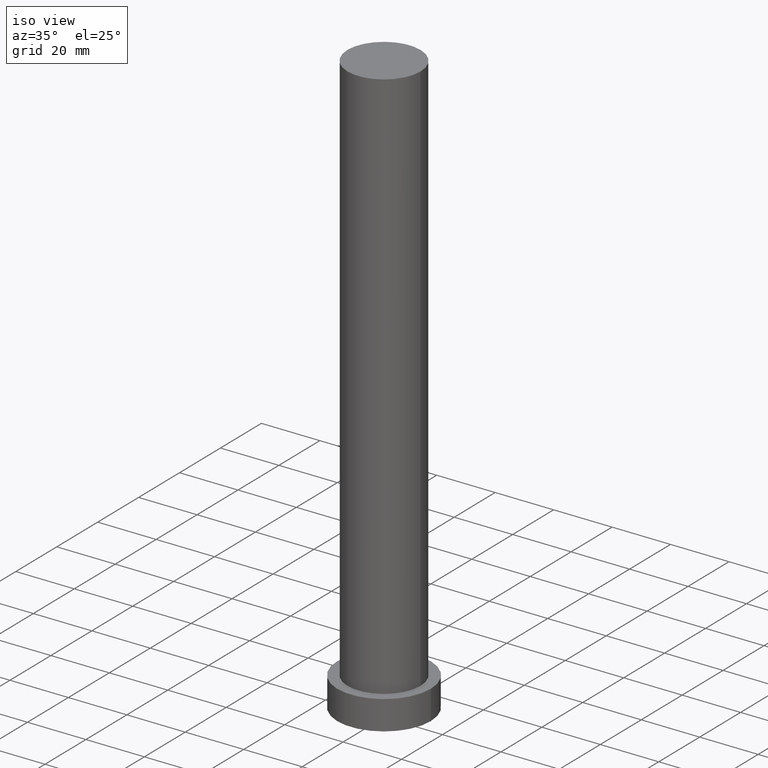
[diagram: clean part render]
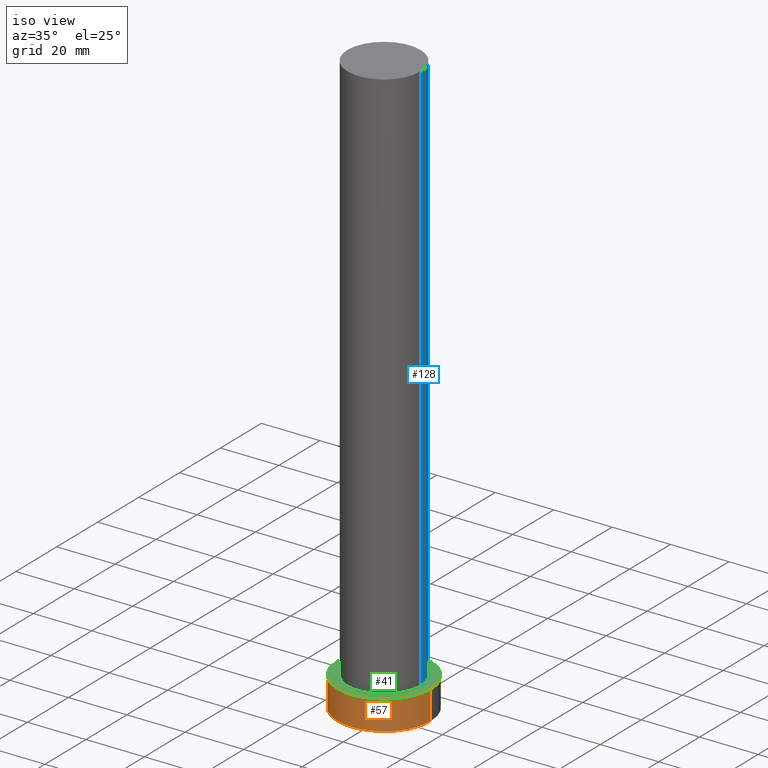
[diagram: same view with three faces highlighted in distinct colors, each labeled with its STEP entity id]
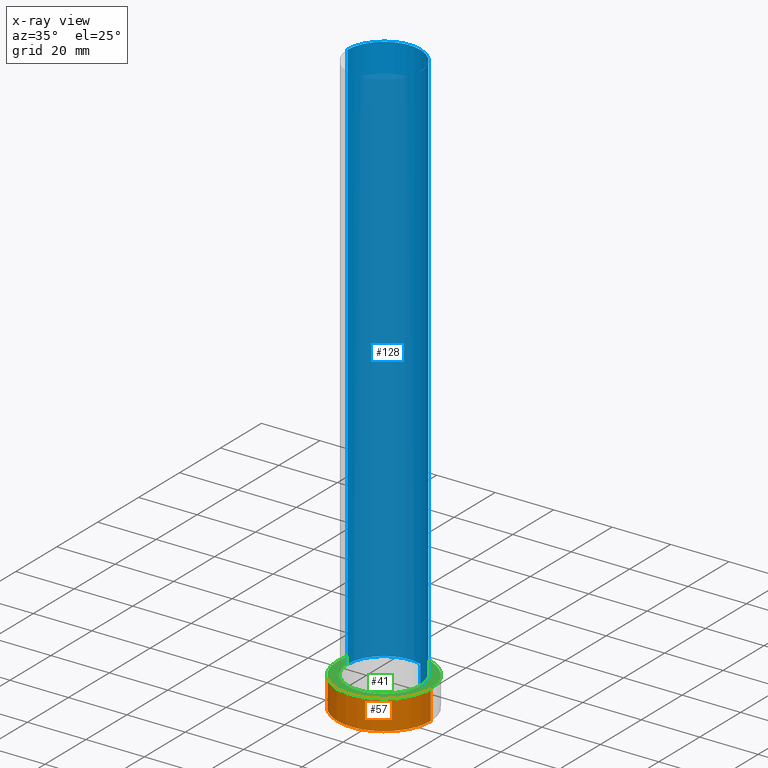
[diagram: x-ray of the same camera — body ghosted, the three highlighted faces saturated]
A machine part, iso view with three faces highlighted in distinct colors.
The next image is the same camera in x-ray (body ghosted, the three faces saturated) — at least one of them is partly hidden behind the body in this view.
Their STEP definitions:

[orange] entity #57 — the highlighted cylindrical surface (partial cylindrical patch) has radius 16 mm, axis along (-0, -0, -1).
#9 = CYLINDRICAL_SURFACE ( 'NONE', #255, 16.00000000000000000 ) ;
#19 = CARTESIAN_POINT ( 'NONE',  ( 16.00000000000000000, 1.959434878635765131E-15, 0.000000000000000000 ) ) ;
#40 = EDGE_LOOP ( 'NONE', ( #205, #153, #92, #129 ) ) ;
#48 = DIRECTION ( 'NONE',  ( -1.000000000000000000, 0.000000000000000000, 0.000000000000000000 ) ) ;
#57 = ADVANCED_FACE ( 'NONE', ( #138 ), #9, .T. ) ;
#58 = CARTESIAN_POINT ( 'NONE',  ( 16.00000000000000000, 1.959434878635765131E-15, 10.00000000000000000 ) ) ;
#65 = CARTESIAN_POINT ( 'NONE',  ( -16.00000000000000000, 0.000000000000000000, 10.00000000000000000 ) ) ;
#68 = AXIS2_PLACEMENT_3D ( 'NONE', #155, #71, #90 ) ;
#71 = DIRECTION ( 'NONE',  ( 0.000000000000000000, 0.000000000000000000, 1.000000000000000000 ) ) ;
#84 = CIRCLE ( 'NONE', #141, 16.00000000000000000 ) ;
#87 = DIRECTION ( 'NONE',  ( -0.000000000000000000, -0.000000000000000000, -1.000000000000000000 ) ) ;
#90 = DIRECTION ( 'NONE',  ( 1.000000000000000000, 0.000000000000000000, 0.000000000000000000 ) ) ;
#92 = ORIENTED_EDGE ( 'NONE', *, *, #236, .T. ) ;
#95 = CARTESIAN_POINT ( 'NONE',  ( 16.00000000000000000, 1.959434878635765131E-15, 10.00000000000000000 ) ) ;
#99 = EDGE_CURVE ( 'NONE', #114, #167, #110, .T. ) ;
#110 = LINE ( 'NONE', #58, #249 ) ;
#111 = CARTESIAN_POINT ( 'NONE',  ( -16.00000000000000000, 0.000000000000000000, 10.00000000000000000 ) ) ;
#114 = VERTEX_POINT ( 'NONE', #95 ) ;
#121 = CIRCLE ( 'NONE', #68, 16.00000000000000000 ) ;
#129 = ORIENTED_EDGE ( 'NONE', *, *, #170, .T. ) ;
#133 = VERTEX_POINT ( 'NONE', #242 ) ;
#135 = CARTESIAN_POINT ( 'NONE',  ( 0.000000000000000000, 0.000000000000000000, 0.000000000000000000 ) ) ;
#137 = DIRECTION ( 'NONE',  ( -0.000000000000000000, -0.000000000000000000, -1.000000000000000000 ) ) ;
#138 = FACE_OUTER_BOUND ( 'NONE', #40, .T. ) ;
#141 = AXIS2_PLACEMENT_3D ( 'NONE', #135, #200, #221 ) ;
#148 = VERTEX_POINT ( 'NONE', #111 ) ;
#150 = DIRECTION ( 'NONE',  ( -0.000000000000000000, -0.000000000000000000, -1.000000000000000000 ) ) ;
#153 = ORIENTED_EDGE ( 'NONE', *, *, #154, .F. ) ;
#154 = EDGE_CURVE ( 'NONE', #148, #114, #121, .T. ) ;
#155 = CARTESIAN_POINT ( 'NONE',  ( 0.000000000000000000, 0.000000000000000000, 10.00000000000000000 ) ) ;
#167 = VERTEX_POINT ( 'NONE', #19 ) ;
#170 = EDGE_CURVE ( 'NONE', #133, #167, #84, .T. ) ;
#200 = DIRECTION ( 'NONE',  ( 0.000000000000000000, 0.000000000000000000, 1.000000000000000000 ) ) ;
#205 = ORIENTED_EDGE ( 'NONE', *, *, #99, .F. ) ;
#215 = VECTOR ( 'NONE', #137, 1000.000000000000000 ) ;
#221 = DIRECTION ( 'NONE',  ( 1.000000000000000000, 0.000000000000000000, 0.000000000000000000 ) ) ;
#223 = LINE ( 'NONE', #65, #215 ) ;
#225 = CARTESIAN_POINT ( 'NONE',  ( 0.000000000000000000, 0.000000000000000000, 10.00000000000000000 ) ) ;
#236 = EDGE_CURVE ( 'NONE', #148, #133, #223, .T. ) ;
#242 = CARTESIAN_POINT ( 'NONE',  ( -16.00000000000000000, 0.000000000000000000, 0.000000000000000000 ) ) ;
#249 = VECTOR ( 'NONE', #87, 1000.000000000000000 ) ;
#255 = AXIS2_PLACEMENT_3D ( 'NONE', #225, #150, #48 ) ;

[blue] entity #128 — the highlighted cylindrical surface (partial cylindrical patch) has radius 12.5 mm, axis along (-0, -0, -1).
#2 = DIRECTION ( 'NONE',  ( -1.000000000000000000, 0.000000000000000000, 0.000000000000000000 ) ) ;
#4 = DIRECTION ( 'NONE',  ( -0.000000000000000000, -0.000000000000000000, -1.000000000000000000 ) ) ;
#8 = CARTESIAN_POINT ( 'NONE',  ( 0.000000000000000000, 0.000000000000000000, 10.00000000000000000 ) ) ;
#11 = CARTESIAN_POINT ( 'NONE',  ( 12.50000000000000000, 1.530808498934191521E-15, 200.0000000000000000 ) ) ;
#12 = CIRCLE ( 'NONE', #185, 12.50000000000000000 ) ;
#17 = EDGE_CURVE ( 'NONE', #64, #164, #74, .T. ) ;
#20 = ORIENTED_EDGE ( 'NONE', *, *, #17, .F. ) ;
#30 = EDGE_CURVE ( 'NONE', #123, #64, #12, .T. ) ;
#38 = CIRCLE ( 'NONE', #51, 12.50000000000000000 ) ;
#45 = DIRECTION ( 'NONE',  ( -0.000000000000000000, -0.000000000000000000, -1.000000000000000000 ) ) ;
#50 = CARTESIAN_POINT ( 'NONE',  ( 0.000000000000000000, 0.000000000000000000, 200.0000000000000000 ) ) ;
#51 = AXIS2_PLACEMENT_3D ( 'NONE', #8, #101, #182 ) ;
#64 = VERTEX_POINT ( 'NONE', #238 ) ;
#70 = AXIS2_PLACEMENT_3D ( 'NONE', #172, #4, #2 ) ;
#72 = FACE_OUTER_BOUND ( 'NONE', #171, .T. ) ;
#74 = LINE ( 'NONE', #156, #81 ) ;
#80 = CYLINDRICAL_SURFACE ( 'NONE', #70, 12.50000000000000000 ) ;
#81 = VECTOR ( 'NONE', #45, 1000.000000000000000 ) ;
#101 = DIRECTION ( 'NONE',  ( 0.000000000000000000, 0.000000000000000000, 1.000000000000000000 ) ) ;
#109 = EDGE_CURVE ( 'NONE', #123, #145, #245, .T. ) ;
#116 = CARTESIAN_POINT ( 'NONE',  ( -12.50000000000000000, 0.000000000000000000, 10.00000000000000000 ) ) ;
#117 = EDGE_CURVE ( 'NONE', #145, #164, #38, .T. ) ;
#118 = DIRECTION ( 'NONE',  ( 1.000000000000000000, 0.000000000000000000, 0.000000000000000000 ) ) ;
#123 = VERTEX_POINT ( 'NONE', #11 ) ;
#128 = ADVANCED_FACE ( 'NONE', ( #72 ), #80, .T. ) ;
#145 = VERTEX_POINT ( 'NONE', #209 ) ;
#156 = CARTESIAN_POINT ( 'NONE',  ( -12.50000000000000000, 0.000000000000000000, 200.0000000000000000 ) ) ;
#164 = VERTEX_POINT ( 'NONE', #116 ) ;
#166 = VECTOR ( 'NONE', #229, 1000.000000000000000 ) ;
#171 = EDGE_LOOP ( 'NONE', ( #197, #241, #220, #20 ) ) ;
#172 = CARTESIAN_POINT ( 'NONE',  ( 0.000000000000000000, 0.000000000000000000, 200.0000000000000000 ) ) ;
#182 = DIRECTION ( 'NONE',  ( 1.000000000000000000, 0.000000000000000000, 0.000000000000000000 ) ) ;
#185 = AXIS2_PLACEMENT_3D ( 'NONE', #50, #206, #118 ) ;
#197 = ORIENTED_EDGE ( 'NONE', *, *, #30, .F. ) ;
#198 = CARTESIAN_POINT ( 'NONE',  ( 12.50000000000000000, 1.530808498934191521E-15, 200.0000000000000000 ) ) ;
#206 = DIRECTION ( 'NONE',  ( 0.000000000000000000, 0.000000000000000000, 1.000000000000000000 ) ) ;
#209 = CARTESIAN_POINT ( 'NONE',  ( 12.50000000000000000, 1.530808498934191521E-15, 10.00000000000000000 ) ) ;
#220 = ORIENTED_EDGE ( 'NONE', *, *, #117, .T. ) ;
#229 = DIRECTION ( 'NONE',  ( -0.000000000000000000, -0.000000000000000000, -1.000000000000000000 ) ) ;
#238 = CARTESIAN_POINT ( 'NONE',  ( -12.50000000000000000, 0.000000000000000000, 200.0000000000000000 ) ) ;
#241 = ORIENTED_EDGE ( 'NONE', *, *, #109, .T. ) ;
#245 = LINE ( 'NONE', #198, #166 ) ;

[green] entity #41 — the highlighted planar face has unit normal (0, 0, 1).
#8 = CARTESIAN_POINT ( 'NONE',  ( 0.000000000000000000, 0.000000000000000000, 10.00000000000000000 ) ) ;
#18 = DIRECTION ( 'NONE',  ( 0.000000000000000000, 0.000000000000000000, 1.000000000000000000 ) ) ;
#22 = ORIENTED_EDGE ( 'NONE', *, *, #83, .F. ) ;
#25 = DIRECTION ( 'NONE',  ( 0.000000000000000000, 0.000000000000000000, 1.000000000000000000 ) ) ;
#28 = PLANE ( 'NONE',  #69 ) ;
#38 = CIRCLE ( 'NONE', #51, 12.50000000000000000 ) ;
#41 = ADVANCED_FACE ( 'NONE', ( #112, #201 ), #28, .T. ) ;
#42 = CARTESIAN_POINT ( 'NONE',  ( 0.000000000000000000, 0.000000000000000000, 10.00000000000000000 ) ) ;
#46 = AXIS2_PLACEMENT_3D ( 'NONE', #42, #18, #149 ) ;
#51 = AXIS2_PLACEMENT_3D ( 'NONE', #8, #101, #182 ) ;
#61 = CARTESIAN_POINT ( 'NONE',  ( 0.000000000000000000, 0.000000000000000000, 10.00000000000000000 ) ) ;
#68 = AXIS2_PLACEMENT_3D ( 'NONE', #155, #71, #90 ) ;
#69 = AXIS2_PLACEMENT_3D ( 'NONE', #100, #25, #98 ) ;
#71 = DIRECTION ( 'NONE',  ( 0.000000000000000000, 0.000000000000000000, 1.000000000000000000 ) ) ;
#78 = ORIENTED_EDGE ( 'NONE', *, *, #191, .T. ) ;
#83 = EDGE_CURVE ( 'NONE', #164, #145, #105, .T. ) ;
#85 = ORIENTED_EDGE ( 'NONE', *, *, #154, .T. ) ;
#90 = DIRECTION ( 'NONE',  ( 1.000000000000000000, 0.000000000000000000, 0.000000000000000000 ) ) ;
#95 = CARTESIAN_POINT ( 'NONE',  ( 16.00000000000000000, 1.959434878635765131E-15, 10.00000000000000000 ) ) ;
#98 = DIRECTION ( 'NONE',  ( 1.000000000000000000, 0.000000000000000000, -0.000000000000000000 ) ) ;
#100 = CARTESIAN_POINT ( 'NONE',  ( 0.000000000000000000, 0.000000000000000000, 10.00000000000000000 ) ) ;
#101 = DIRECTION ( 'NONE',  ( 0.000000000000000000, 0.000000000000000000, 1.000000000000000000 ) ) ;
#105 = CIRCLE ( 'NONE', #240, 12.50000000000000000 ) ;
#111 = CARTESIAN_POINT ( 'NONE',  ( -16.00000000000000000, 0.000000000000000000, 10.00000000000000000 ) ) ;
#112 = FACE_BOUND ( 'NONE', #174, .T. ) ;
#114 = VERTEX_POINT ( 'NONE', #95 ) ;
#116 = CARTESIAN_POINT ( 'NONE',  ( -12.50000000000000000, 0.000000000000000000, 10.00000000000000000 ) ) ;
#117 = EDGE_CURVE ( 'NONE', #145, #164, #38, .T. ) ;
#121 = CIRCLE ( 'NONE', #68, 16.00000000000000000 ) ;
#131 = DIRECTION ( 'NONE',  ( 0.000000000000000000, 0.000000000000000000, 1.000000000000000000 ) ) ;
#144 = CIRCLE ( 'NONE', #46, 16.00000000000000000 ) ;
#145 = VERTEX_POINT ( 'NONE', #209 ) ;
#148 = VERTEX_POINT ( 'NONE', #111 ) ;
#149 = DIRECTION ( 'NONE',  ( 1.000000000000000000, 0.000000000000000000, 0.000000000000000000 ) ) ;
#154 = EDGE_CURVE ( 'NONE', #148, #114, #121, .T. ) ;
#155 = CARTESIAN_POINT ( 'NONE',  ( 0.000000000000000000, 0.000000000000000000, 10.00000000000000000 ) ) ;
#157 = ORIENTED_EDGE ( 'NONE', *, *, #117, .F. ) ;
#164 = VERTEX_POINT ( 'NONE', #116 ) ;
#169 = DIRECTION ( 'NONE',  ( 1.000000000000000000, 0.000000000000000000, 0.000000000000000000 ) ) ;
#174 = EDGE_LOOP ( 'NONE', ( #22, #157 ) ) ;
#182 = DIRECTION ( 'NONE',  ( 1.000000000000000000, 0.000000000000000000, 0.000000000000000000 ) ) ;
#191 = EDGE_CURVE ( 'NONE', #114, #148, #144, .T. ) ;
#192 = EDGE_LOOP ( 'NONE', ( #85, #78 ) ) ;
#201 = FACE_OUTER_BOUND ( 'NONE', #192, .T. ) ;
#209 = CARTESIAN_POINT ( 'NONE',  ( 12.50000000000000000, 1.530808498934191521E-15, 10.00000000000000000 ) ) ;
#240 = AXIS2_PLACEMENT_3D ( 'NONE', #61, #131, #169 ) ;